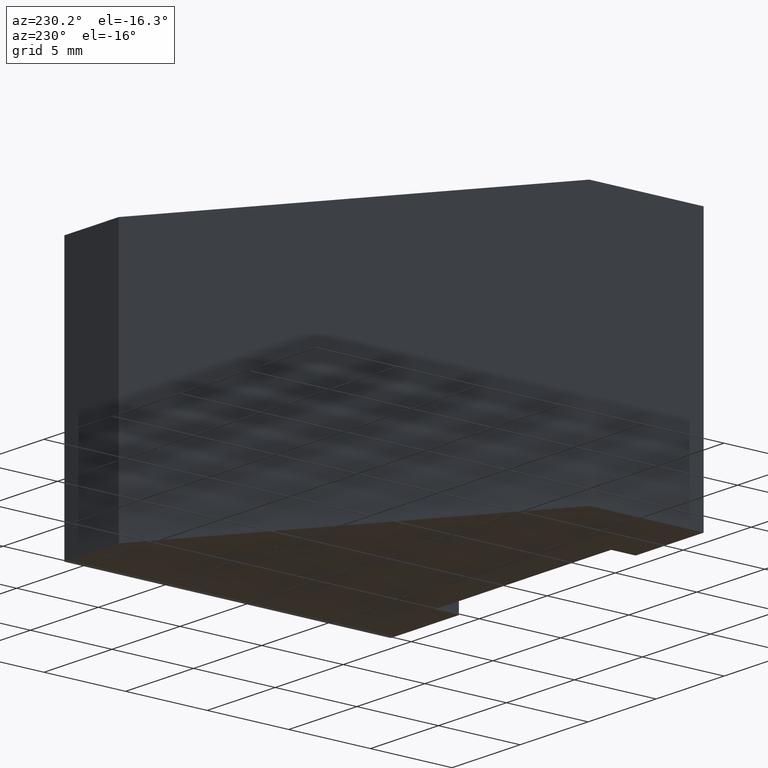
[diagram: clean part render]
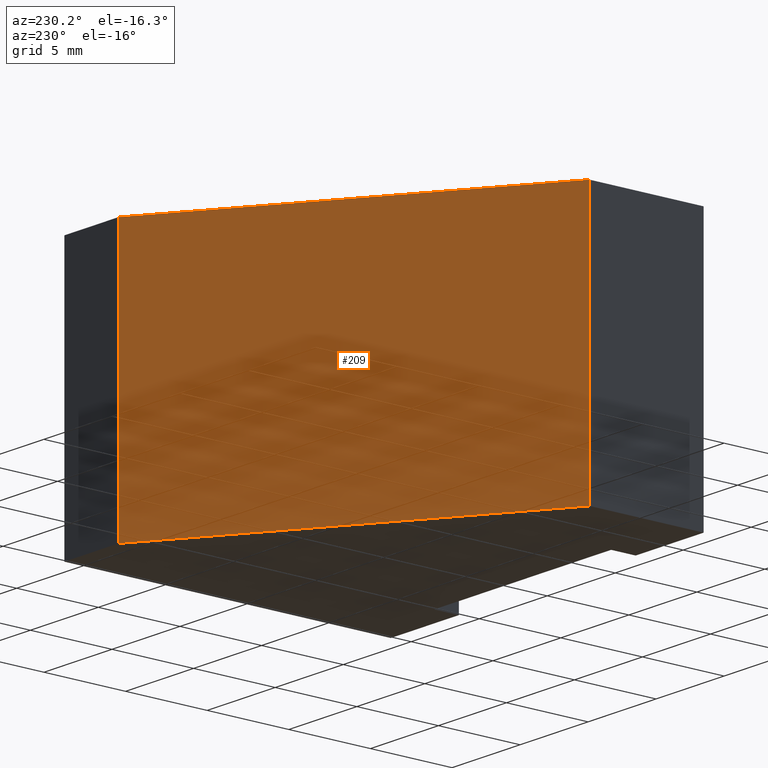
[diagram: same view with one face highlighted and labeled with its STEP entity id]
A machine part, auxiliary view. The second image highlights one B-rep face of the part: STEP entity #209.
In plain terms, the highlighted planar face has unit normal (-0.5647, 0.8253, 0).
Its self-contained STEP definition (entity closure, byte-faithful):
#23=FACE_OUTER_BOUND('',#34,.T.);
#34=EDGE_LOOP('',(#167,#168,#169,#170));
#46=LINE('',#317,#73);
#58=LINE('',#340,#85);
#59=LINE('',#343,#86);
#60=LINE('',#344,#87);
#73=VECTOR('',#259,10.);
#85=VECTOR('',#281,10.);
#86=VECTOR('',#284,10.);
#87=VECTOR('',#285,10.);
#100=VERTEX_POINT('',#314);
#101=VERTEX_POINT('',#316);
#107=VERTEX_POINT('',#338);
#108=VERTEX_POINT('',#342);
#118=EDGE_CURVE('',#101,#100,#46,.T.);
#130=EDGE_CURVE('',#107,#100,#58,.T.);
#131=EDGE_CURVE('',#107,#108,#59,.T.);
#132=EDGE_CURVE('',#108,#101,#60,.T.);
#167=ORIENTED_EDGE('',*,*,#131,.T.);
#168=ORIENTED_EDGE('',*,*,#132,.T.);
#169=ORIENTED_EDGE('',*,*,#118,.T.);
#170=ORIENTED_EDGE('',*,*,#130,.F.);
#198=PLANE('',#243);
#209=ADVANCED_FACE('',(#23),#198,.T.);
#243=AXIS2_PLACEMENT_3D('',#341,#282,#283);
#259=DIRECTION('',(-0.825307261249832,-0.56468391559199,0.));
#281=DIRECTION('',(0.,0.,-1.));
#282=DIRECTION('center_axis',(-0.56468391559199,0.825307261249832,0.));
#283=DIRECTION('ref_axis',(0.,0.,1.));
#284=DIRECTION('',(0.825307261249832,0.56468391559199,0.));
#285=DIRECTION('',(0.,0.,-1.));
#314=CARTESIAN_POINT('',(-11.5,7.,-8.));
#316=CARTESIAN_POINT('',(7.49999999999999,20.,-8.));
#317=CARTESIAN_POINT('',(-11.5,7.,-8.));
#338=CARTESIAN_POINT('',(-11.5,7.,8.));
#340=CARTESIAN_POINT('',(-11.5,7.,0.));
#341=CARTESIAN_POINT('Origin',(-11.5,7.,0.));
#342=CARTESIAN_POINT('',(7.49999999999999,20.,8.));
#343=CARTESIAN_POINT('',(-11.5,7.,8.));
#344=CARTESIAN_POINT('',(7.49999999999999,20.,0.));